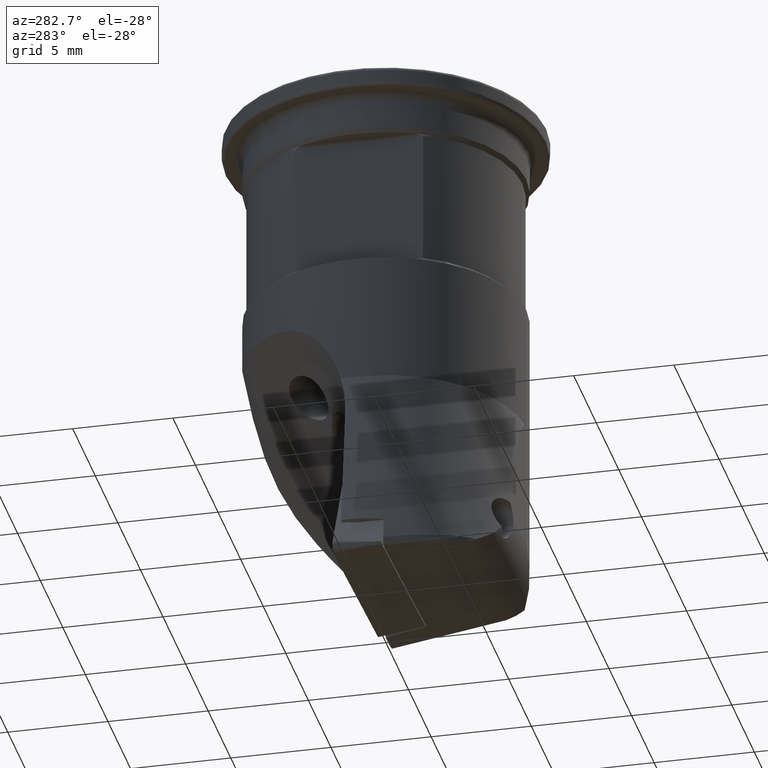
[diagram: clean part render]
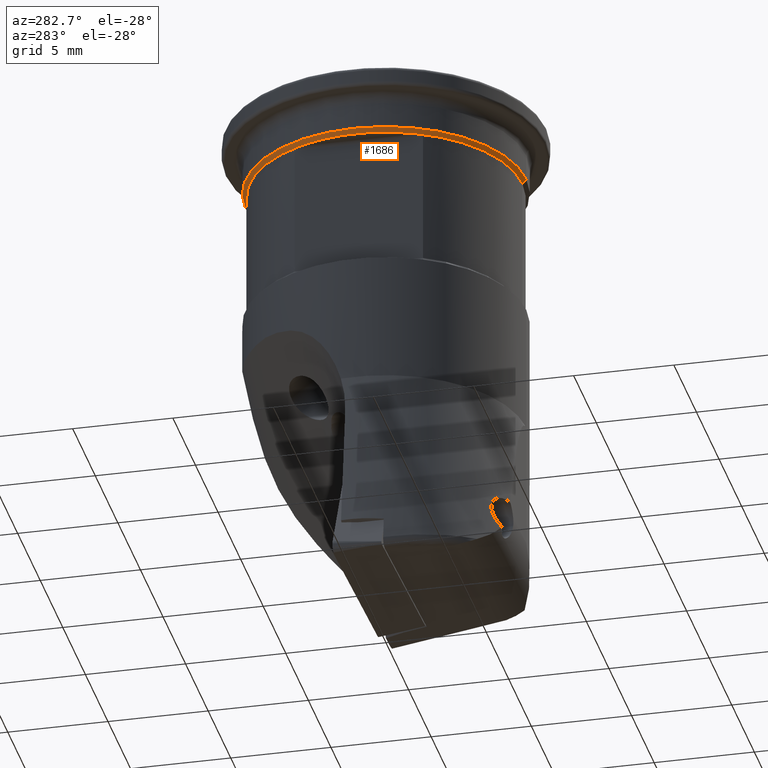
[diagram: same view with one face highlighted and labeled with its STEP entity id]
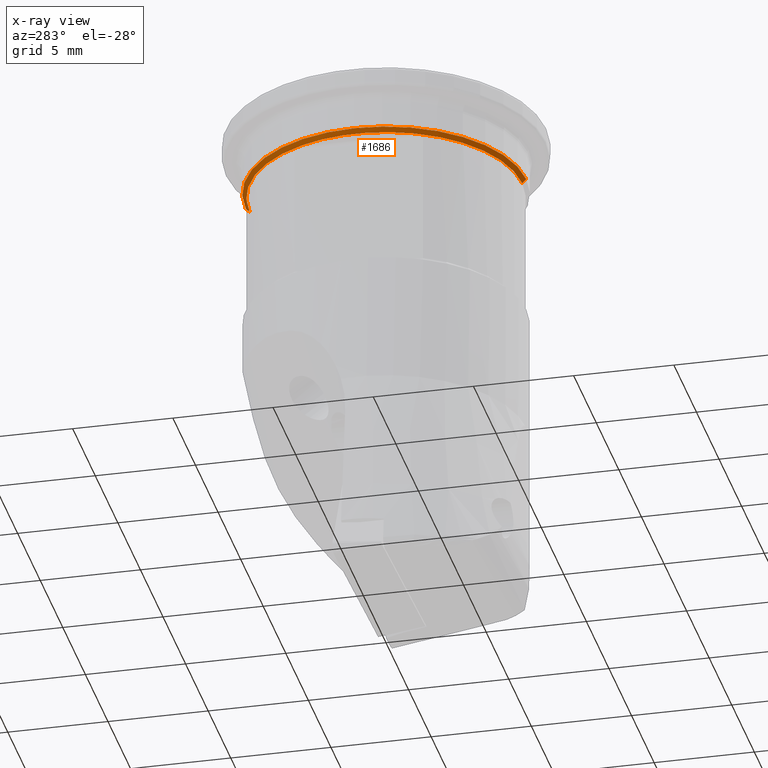
[diagram: x-ray of the same camera — body ghosted, the highlighted face saturated]
A machine part, auxiliary view. The second image highlights one B-rep face of the part: STEP entity #1686.
The next image is the same camera in x-ray: the body ghosted, the highlighted face saturated — about 0% of this face is hidden behind the body in this view.
In plain terms, the highlighted conical surface has half-angle 45 deg.
Its self-contained STEP definition (entity closure, byte-faithful):
#772=VERTEX_POINT('NONE',#2090);
#904=EDGE_CURVE('NONE',#936,#1204,#2235,.F.);
#936=VERTEX_POINT('NONE',#2269);
#1026=EDGE_CURVE('NONE',#1134,#936,#2369,.T.);
#1134=VERTEX_POINT('NONE',#2488);
#1204=VERTEX_POINT('NONE',#2567);
#1334=EDGE_CURVE('NONE',#772,#1204,#2720,.T.);
#1446=VERTEX_POINT('NONE',#2844);
#1686=ADVANCED_FACE('NONE',(#3112),#3113,.T.);
#1716=EDGE_CURVE('NONE',#1906,#1446,#3144,.F.);
#1822=EDGE_CURVE('NONE',#1446,#772,#3256,.T.);
#1898=EDGE_CURVE('NONE',#1134,#1906,#3337,.T.);
#1906=VERTEX_POINT('NONE',#3347);
#2090=CARTESIAN_POINT('',(-3.67394039744206E-016,-6.8,-3.0));
#2235=CIRCLE('',#3835,7.0);
#2269=CARTESIAN_POINT('',(5.14351655641888E-016,7.0,-2.8));
#2369=LINE('',#4117,#4118);
#2488=CARTESIAN_POINT('',(4.77612251667468E-016,6.8,-3.0));
#2567=CARTESIAN_POINT('',(-3.42901103761259E-016,-7.0,-2.8));
#2720=LINE('',#5243,#5244);
#2844=CARTESIAN_POINT('',(-6.2,-2.79284800875379,-3.0));
#3112=FACE_OUTER_BOUND('',#6396,.T.);
#3113=CONICAL_SURFACE('',#6397,7.0,0.78539816339745);
#3144=CIRCLE('',#6446,6.8);
#3256=CIRCLE('',#6675,6.8);
#3337=CIRCLE('',#6812,6.8);
#3347=CARTESIAN_POINT('',(-6.2,2.79284800875379,-3.0));
#3835=AXIS2_PLACEMENT_3D('',#7247,#7248,#7249);
#4117=CARTESIAN_POINT('',(5.14351655641888E-016,7.0,-2.8));
#4118=VECTOR('',#7396,1000.0);
#5243=CARTESIAN_POINT('',(-3.42901103761259E-016,-7.0,-2.8));
#5244=VECTOR('',#7851,1000.0);
#6396=EDGE_LOOP('',(#8339,#8340,#8341,#8342,#8343,#8344));
#6397=AXIS2_PLACEMENT_3D('',#8345,#8346,#8347);
#6446=AXIS2_PLACEMENT_3D('',#8366,#8367,#8368);
#6675=AXIS2_PLACEMENT_3D('',#8455,#8456,#8457);
#6812=AXIS2_PLACEMENT_3D('',#8531,#8532,#8533);
#7247=CARTESIAN_POINT('',(-3.42901103761259E-016,0.0,-2.8));
#7248=DIRECTION('',(-1.22464679914735E-016,-0.0,-1.0));
#7249=DIRECTION('',(0.0,-1.0,0.0));
#7396=DIRECTION('',(1.73191211247099E-016,0.707106781186548,0.707106781186547));
#7851=DIRECTION('',(8.65956056235492E-017,-0.707106781186548,0.707106781186547));
#8339=ORIENTED_EDGE('',*,*,#1026,.F.);
#8340=ORIENTED_EDGE('',*,*,#1898,.T.);
#8341=ORIENTED_EDGE('',*,*,#1716,.T.);
#8342=ORIENTED_EDGE('',*,*,#1822,.T.);
#8343=ORIENTED_EDGE('',*,*,#1334,.T.);
#8344=ORIENTED_EDGE('',*,*,#904,.F.);
#8345=CARTESIAN_POINT('',(-3.42901103761259E-016,0.0,-2.8));
#8346=DIRECTION('',(1.22464679914735E-016,0.0,1.0));
#8347=DIRECTION('',(0.0,-1.0,0.0));
#8366=CARTESIAN_POINT('',(-3.67394039744206E-016,0.0,-3.0));
#8367=DIRECTION('',(-1.22464679914735E-016,-0.0,-1.0));
#8368=DIRECTION('',(0.0,-1.0,0.0));
#8455=CARTESIAN_POINT('',(-3.67394039744206E-016,0.0,-3.0));
#8456=DIRECTION('',(1.22464679914735E-016,0.0,1.0));
#8457=DIRECTION('',(0.0,-1.0,0.0));
#8531=CARTESIAN_POINT('',(-3.67394039744206E-016,0.0,-3.0));
#8532=DIRECTION('',(1.22464679914735E-016,0.0,1.0));
#8533=DIRECTION('',(0.0,-1.0,0.0));